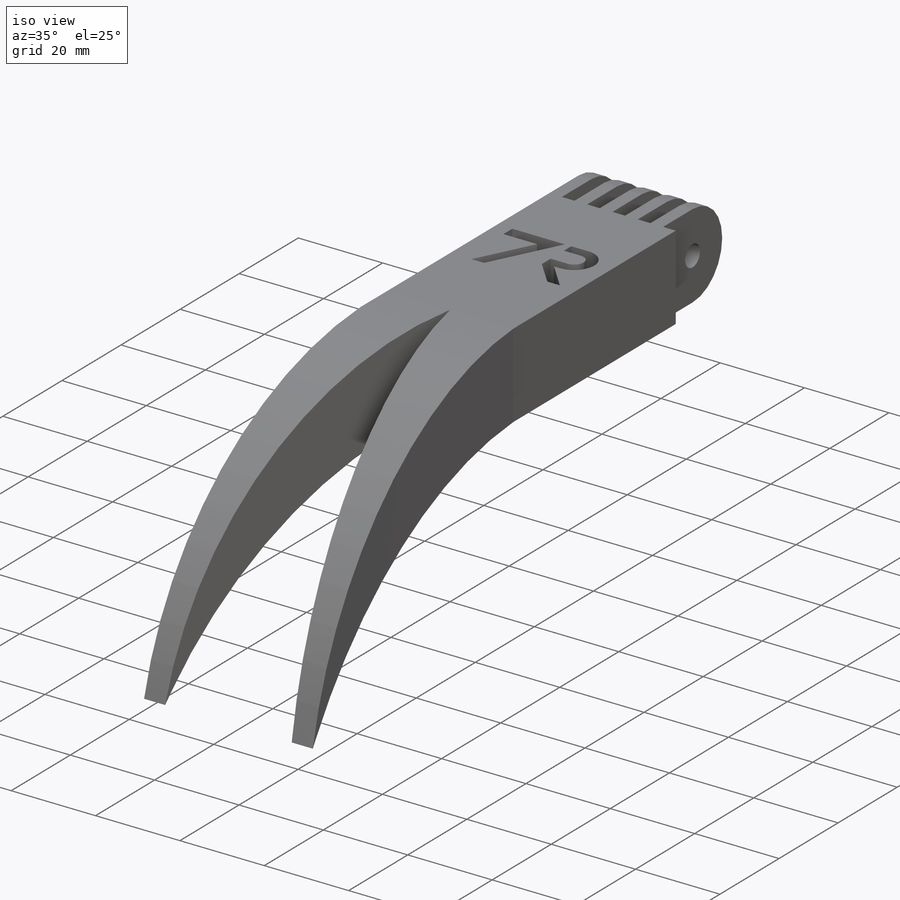
[diagram: iso view]
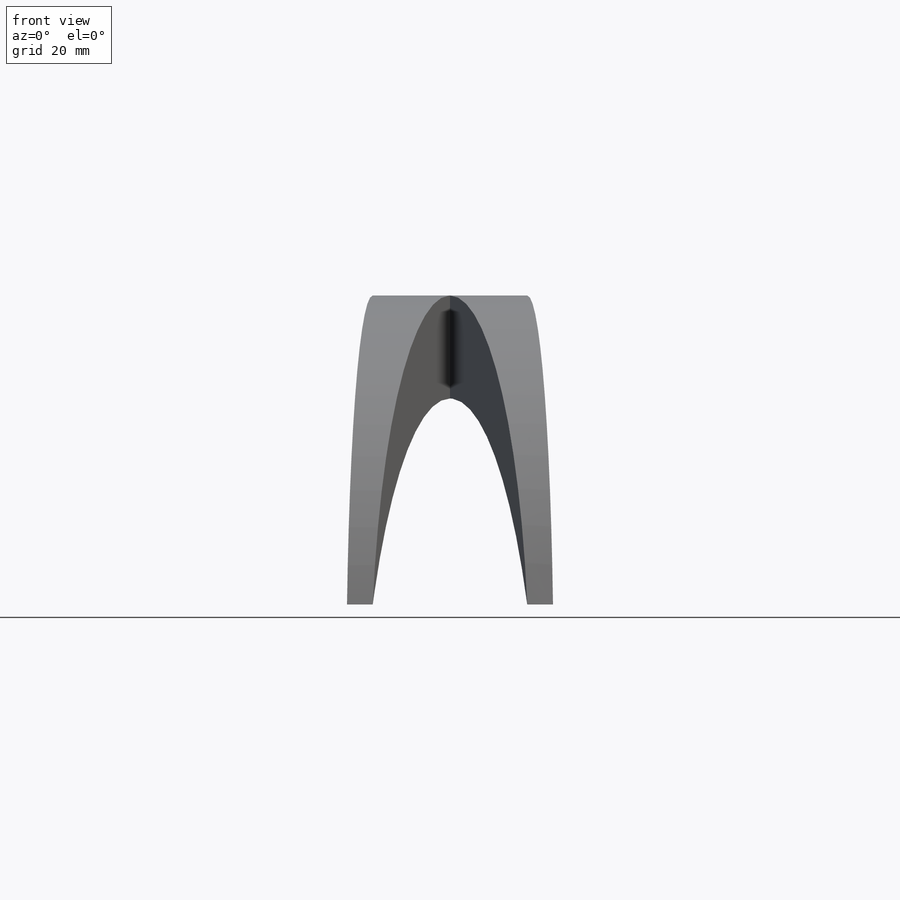
[diagram: front view]
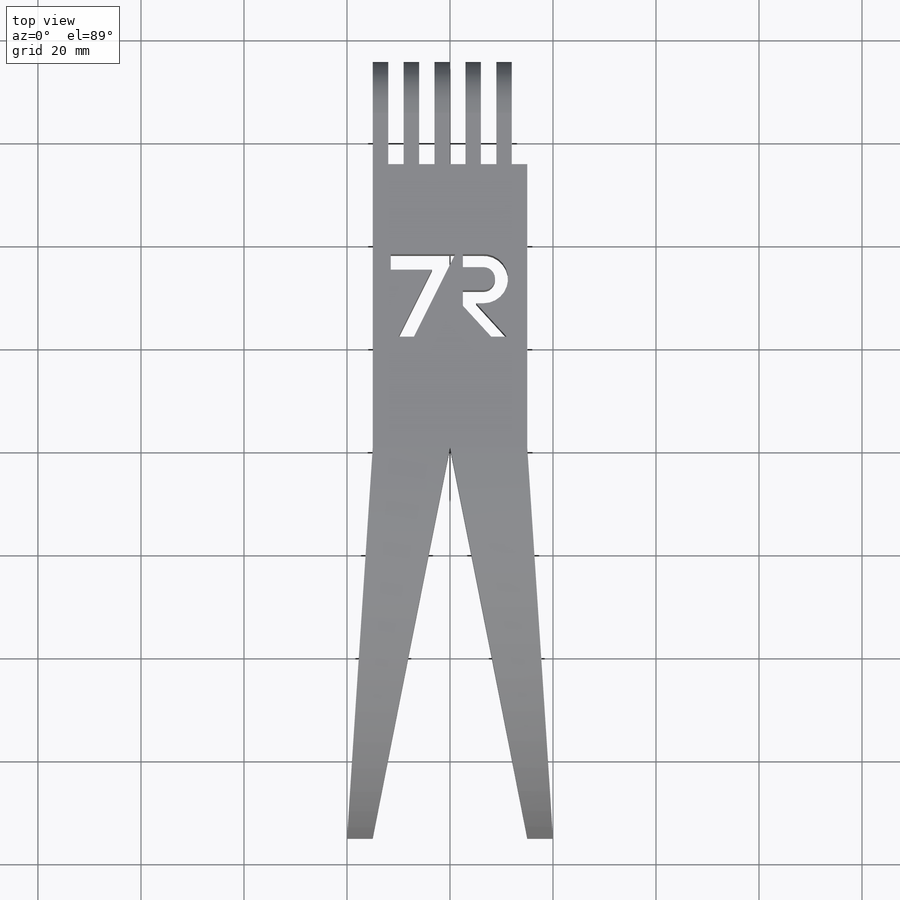
[diagram: top view]
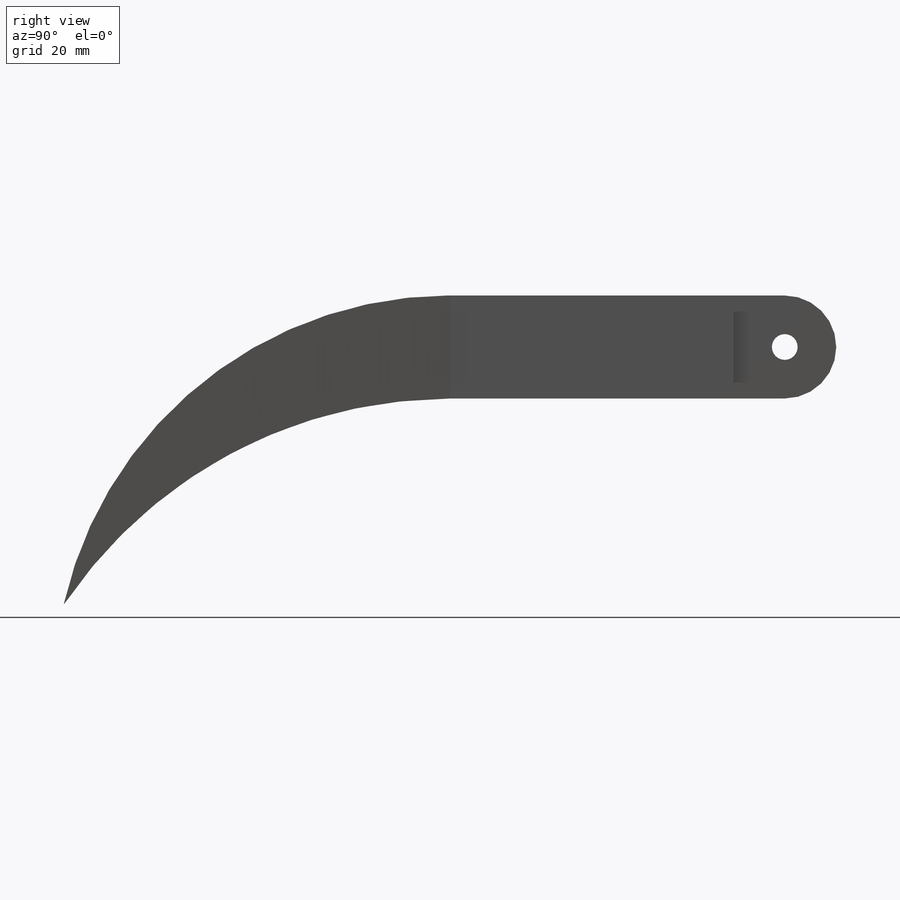
[diagram: right view]
SOLIDWORKS PART (.sldprt)
format: sldprt  version: not decoded by parser v0  size: 529,920 bytes
history: native  units: mm
features: sketch x4, plane x3, cut_extrude x3, material x1, extrude x1, fillet x1 (+8 scaffold rows collapsed)
feature tree (21):
  scaffold x8  (default folders/planes/origin — collapsed)
  material  "Matériau <non spécifié>"
  plane  "Plan de face"
  plane  "Plan de dessus"
  plane  "Plan de droite"
  sketch  "Esquisse1"  dims[c1.D8=5.0mm c1.D1=~109.31209mm c2.D1=15.0deg c2.D2=20.0mm c2.D3=75.0mm c2.D4=75.0mm c2.D5=75.0mm c2.D6=50.0mm c2.D7=5.0mm c3.D1=10.0mm c3.D5=75.0mm c3.D6=75.0mm c3.D7=30.0mm c3.D9=10.0mm c3.D10=10.0mm]
  extrude  "Boss.-Extru.1"  Depth=40mm
  sketch  "Esquisse2"  dims[D1=30.0mm D2=5.0mm]
  cut_extrude  "Enlèv. mat.-Extru.1"  Depth=60mm
  fillet  "Congé1"  Radius=10mm
  sketch  "Esquisse3"  dims[D1=3.0mm D2=3.0mm D3=3.0mm D4=3.0mm D5=3.0mm D6=3.0mm D7=3.0mm D8=3.0mm D9=3.0mm D10=20.0mm D11=25.0mm D12=27.0mm D13=25.0mm D14=25.0mm D15=25.0mm D16=25.0mm D17=25.0mm D18=25.0mm D19=25.0mm]
  cut_extrude  "Enlèv. mat.-Extru.2"  Depth=20mm
  sketch  "Esquisse4"  dims[c1.D17=~5.024938mm c1.D1=3.0mm c1.D2=3.0mm c1.D3=8.0mm c1.D4=3.5mm c1.D5=17.5mm c1.D6=13.0mm c1.D7=12.5mm c1.D8=2.5mm c1.D9=17.5mm c1.D10=12.5mm c1.D11=3.0mm c1.D12=4.5mm c1.D13=3.5mm c1.D14=4.0mm c1.D15=4.0mm c1.D16=3.0mm c2.D17=3.0mm]
  cut_extrude  "Enlèv. mat.-Extru.3"  Depth=20mm
decode coverage: 9 of 9 modeling features carry decoded parameters
note: ~ marks probable driven/reference dimensions
note: suppression state not decoded; provenance and decode notes live in map.json
